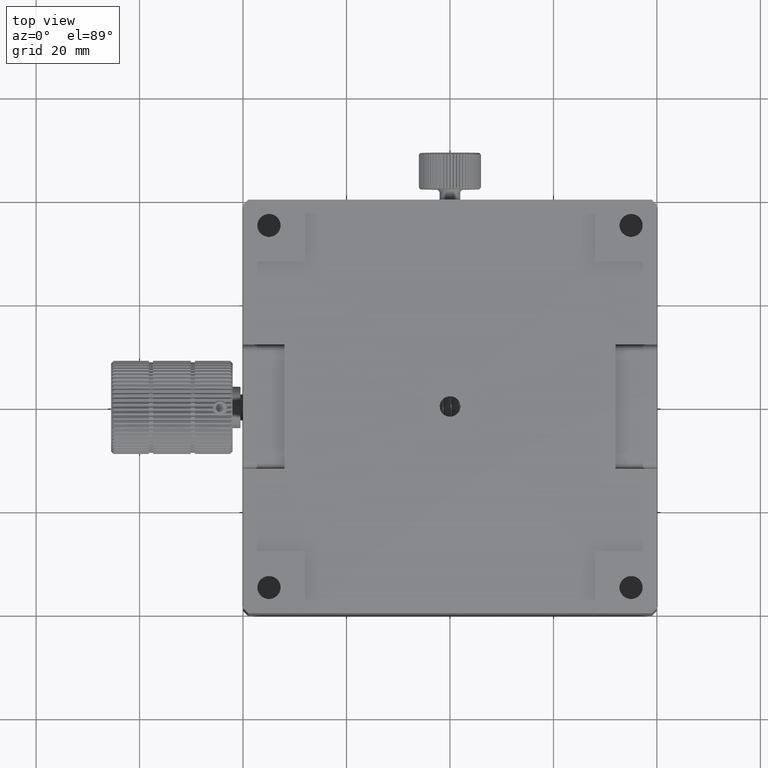
[diagram: clean part render]
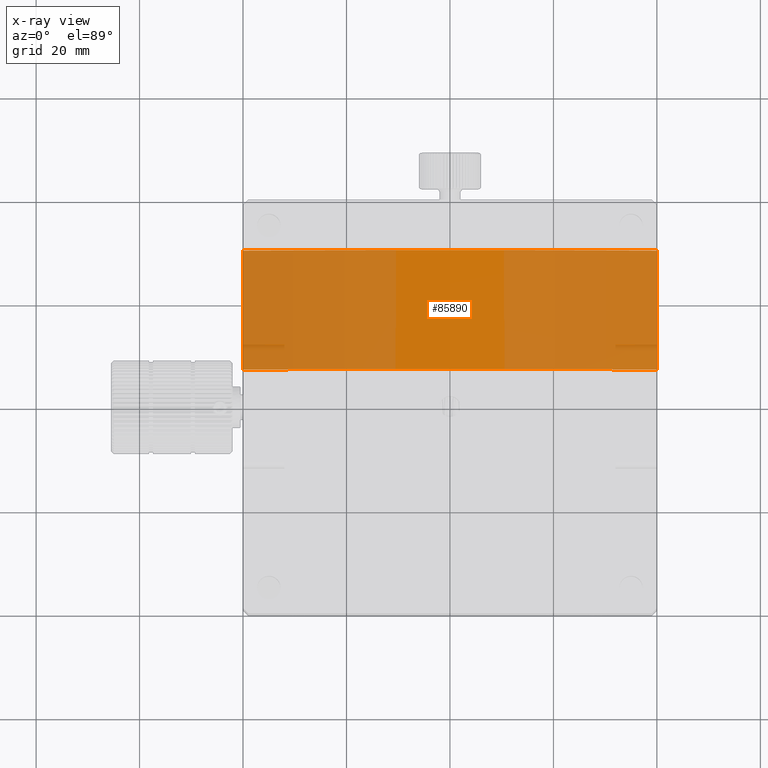
[diagram: x-ray — body ghosted, one internal face saturated and labeled with its STEP entity id]
A machine part, top view, then the same camera in x-ray: the body is ghosted and one INTERNAL B-rep face — a face not visible from any outside direction — is saturated and labeled: STEP entity #85890.
In plain terms, the highlighted cylindrical surface (partial cylindrical patch) has radius 115 mm, axis along (0, 1, 0).
Its self-contained STEP definition (entity closure, byte-faithful):
#219 = CARTESIAN_POINT ( 'NONE',  ( -3.081487911019577365E-30, 30.50000000000002487, 1.387778780781445676E-14 ) ) ;
#3953 = DIRECTION ( 'NONE',  ( 0.000000000000000000, 1.000000000000000000, 0.000000000000000000 ) ) ;
#4716 = CARTESIAN_POINT ( 'NONE',  ( 39.99999999999998579, 30.50000000000002842, 107.8192932642391071 ) ) ;
#12644 = DIRECTION ( 'NONE',  ( 0.000000000000000000, 0.000000000000000000, 1.000000000000000000 ) ) ;
#13109 = CARTESIAN_POINT ( 'NONE',  ( -40.00000000000002132, 7.500000000000000000, 107.8192932642390787 ) ) ;
#16541 = VERTEX_POINT ( 'NONE', #4716 ) ;
#19966 = EDGE_CURVE ( 'NONE', #16541, #44654, #22823, .T. ) ;
#20621 = DIRECTION ( 'NONE',  ( 0.000000000000000000, 0.000000000000000000, 1.000000000000000000 ) ) ;
#22823 = LINE ( 'NONE', #69131, #44234 ) ;
#24233 = ORIENTED_EDGE ( 'NONE', *, *, #19966, .F. ) ;
#32759 = DIRECTION ( 'NONE',  ( 0.000000000000000000, 0.000000000000000000, 1.000000000000000000 ) ) ;
#33516 = EDGE_CURVE ( 'NONE', #59563, #44711, #78813, .T. ) ;
#34804 = CIRCLE ( 'NONE', #62320, 114.9999999999999574 ) ;
#38659 = CARTESIAN_POINT ( 'NONE',  ( -3.081487911019577365E-30, 40.00000000000003553, 1.387778780781445676E-14 ) ) ;
#38873 = ORIENTED_EDGE ( 'NONE', *, *, #63058, .F. ) ;
#43262 = DIRECTION ( 'NONE',  ( -0.000000000000000000, -1.000000000000000000, -0.000000000000000000 ) ) ;
#43917 = CARTESIAN_POINT ( 'NONE',  ( 40.00000000000002132, 7.500000000000000000, 107.8192932642391071 ) ) ;
#44234 = VECTOR ( 'NONE', #43262, 1000.000000000000000 ) ;
#44654 = VERTEX_POINT ( 'NONE', #43917 ) ;
#44711 = VERTEX_POINT ( 'NONE', #58379 ) ;
#46495 = AXIS2_PLACEMENT_3D ( 'NONE', #62530, #68455, #12644 ) ;
#54047 = FACE_OUTER_BOUND ( 'NONE', #68528, .T. ) ;
#55543 = DIRECTION ( 'NONE',  ( 0.000000000000000000, 1.000000000000000000, 0.000000000000000000 ) ) ;
#58379 = CARTESIAN_POINT ( 'NONE',  ( -40.00000000000002132, 30.50000000000002842, 107.8192932642390787 ) ) ;
#59500 = DIRECTION ( 'NONE',  ( 0.000000000000000000, 1.000000000000000000, 0.000000000000000000 ) ) ;
#59563 = VERTEX_POINT ( 'NONE', #13109 ) ;
#62320 = AXIS2_PLACEMENT_3D ( 'NONE', #219, #55543, #20621 ) ;
#62530 = CARTESIAN_POINT ( 'NONE',  ( -3.081487911019577365E-30, 7.500000000000000000, 1.387778780781445676E-14 ) ) ;
#63058 = EDGE_CURVE ( 'NONE', #44711, #16541, #34804, .T. ) ;
#67233 = CYLINDRICAL_SURFACE ( 'NONE', #88299, 114.9999999999999574 ) ;
#68455 = DIRECTION ( 'NONE',  ( 0.000000000000000000, 1.000000000000000000, 0.000000000000000000 ) ) ;
#68528 = EDGE_LOOP ( 'NONE', ( #24233, #38873, #87490, #71337 ) ) ;
#69131 = CARTESIAN_POINT ( 'NONE',  ( 39.99999999999998579, -40.00000000000002132, 107.8192932642391071 ) ) ;
#71337 = ORIENTED_EDGE ( 'NONE', *, *, #81912, .T. ) ;
#72893 = CARTESIAN_POINT ( 'NONE',  ( -40.00000000000002132, -40.00000000000002132, 107.8192932642390787 ) ) ;
#78321 = VECTOR ( 'NONE', #3953, 1000.000000000000000 ) ;
#78813 = LINE ( 'NONE', #72893, #78321 ) ;
#81241 = CIRCLE ( 'NONE', #46495, 114.9999999999999574 ) ;
#81912 = EDGE_CURVE ( 'NONE', #59563, #44654, #81241, .T. ) ;
#85890 = ADVANCED_FACE ( 'NONE', ( #54047 ), #67233, .T. ) ;
#87490 = ORIENTED_EDGE ( 'NONE', *, *, #33516, .F. ) ;
#88299 = AXIS2_PLACEMENT_3D ( 'NONE', #38659, #59500, #32759 ) ;